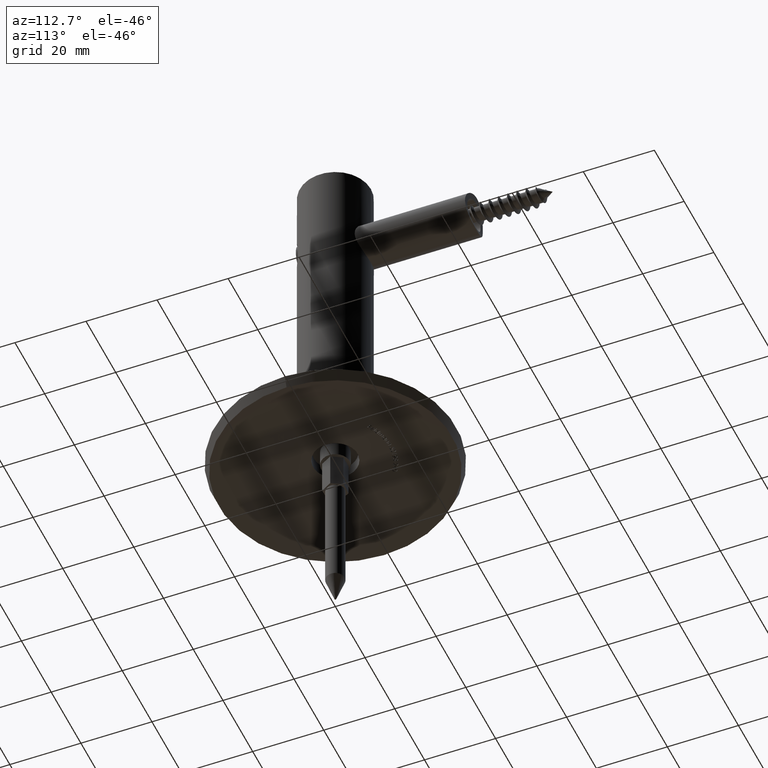
[diagram: clean part render]
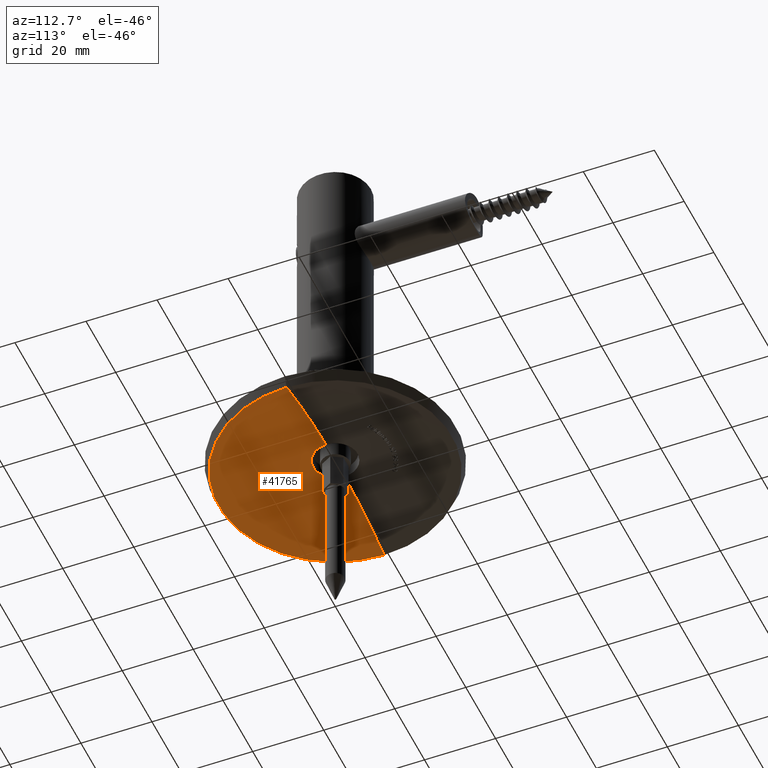
[diagram: same view with one face highlighted and labeled with its STEP entity id]
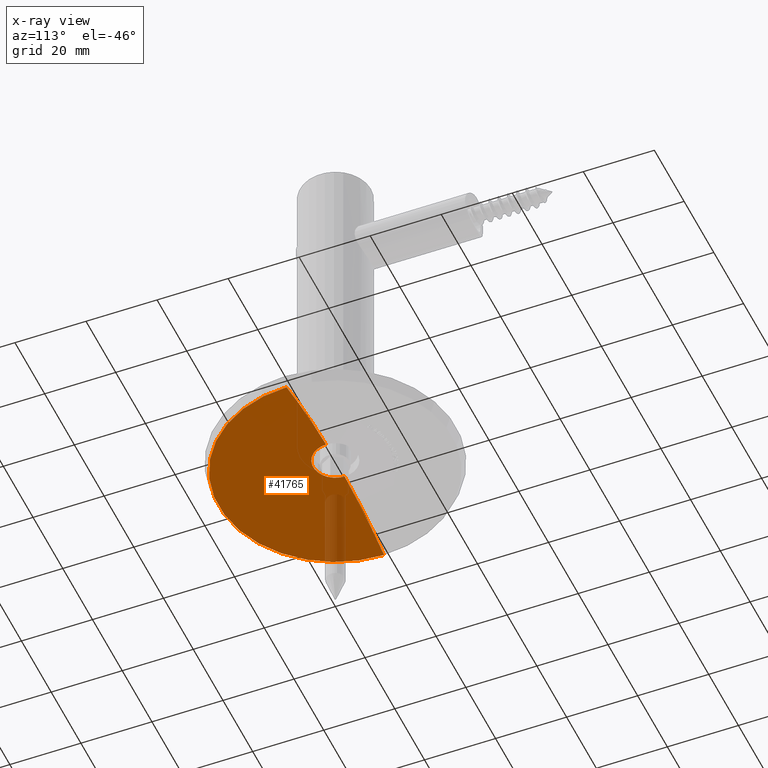
[diagram: x-ray of the same camera — body ghosted, the highlighted face saturated]
A machine part, auxiliary view. The second image highlights one B-rep face of the part: STEP entity #41765.
The next image is the same camera in x-ray: the body ghosted, the highlighted face saturated — about 7% of this face is hidden behind the body in this view.
In plain terms, the highlighted spherical surface has radius 132.202 mm.
Its self-contained STEP definition (entity closure, byte-faithful):
#1206 = SPHERICAL_SURFACE ( 'NONE', #4555, 132.2019220182881725 ) ;
#3555 = DIRECTION ( 'NONE',  ( -1.873600393855974325E-19, 1.000000000000000000, -0.000000000000000000 ) ) ;
#3759 = DIRECTION ( 'NONE',  ( 0.000000000000000000, 0.000000000000000000, 1.000000000000000000 ) ) ;
#3782 = DIRECTION ( 'NONE',  ( 1.224646799147353207E-16, 2.294498725216939218E-35, -1.000000000000000000 ) ) ;
#4099 = CIRCLE ( 'NONE', #15116, 132.2019220182881725 ) ;
#4555 = AXIS2_PLACEMENT_3D ( 'NONE', #21039, #32043, #41966 ) ;
#5153 = VERTEX_POINT ( 'NONE', #42075 ) ;
#6884 = CARTESIAN_POINT ( 'NONE',  ( 2.769568483248144150E-20, -0.1478206608159504665, 0.000000000000000000 ) ) ;
#6949 = CARTESIAN_POINT ( 'NONE',  ( 3.232237634562468506E-14, -132.2019220182881725, 0.000000000000000000 ) ) ;
#7104 = EDGE_LOOP ( 'NONE', ( #8090, #30852, #12939, #32981 ) ) ;
#8090 = ORIENTED_EDGE ( 'NONE', *, *, #11078, .F. ) ;
#8646 = CARTESIAN_POINT ( 'NONE',  ( 7.761254698396231712E-19, -4.142427981893799682, 0.000000000000000000 ) ) ;
#8714 = EDGE_CURVE ( 'NONE', #5153, #19216, #4099, .T. ) ;
#10146 = DIRECTION ( 'NONE',  ( -1.000000000000000000, 0.000000000000000000, -1.224646799147353207E-16 ) ) ;
#11078 = EDGE_CURVE ( 'NONE', #21315, #5153, #28354, .T. ) ;
#12939 = ORIENTED_EDGE ( 'NONE', *, *, #38410, .T. ) ;
#14231 = AXIS2_PLACEMENT_3D ( 'NONE', #33447, #3782, #10146 ) ;
#14288 = CARTESIAN_POINT ( 'NONE',  ( -6.249999999999849898, -0.1478206608159504665, -2.393244512369030344E-15 ) ) ;
#14995 = DIRECTION ( 'NONE',  ( -1.000000000000000000, 0.000000000000000000, 0.000000000000000000 ) ) ;
#15116 = AXIS2_PLACEMENT_3D ( 'NONE', #6949, #3759, #33567 ) ;
#17299 = CARTESIAN_POINT ( 'NONE',  ( 6.249999999999849898, -0.1478206608159504665, 0.000000000000000000 ) ) ;
#17440 = VERTEX_POINT ( 'NONE', #14288 ) ;
#18789 = FACE_OUTER_BOUND ( 'NONE', #7104, .T. ) ;
#19216 = VERTEX_POINT ( 'NONE', #17299 ) ;
#20437 = CARTESIAN_POINT ( 'NONE',  ( -32.83464896222003659, -4.142427981893796129, -4.021084775270976268E-15 ) ) ;
#21039 = CARTESIAN_POINT ( 'NONE',  ( 3.232237634562468506E-14, -132.2019220182881725, 0.000000000000000000 ) ) ;
#21315 = VERTEX_POINT ( 'NONE', #20437 ) ;
#23769 = AXIS2_PLACEMENT_3D ( 'NONE', #8646, #41867, #14995 ) ;
#26686 = EDGE_CURVE ( 'NONE', #21315, #17440, #34616, .T. ) ;
#26813 = DIRECTION ( 'NONE',  ( -1.000000000000000000, 0.000000000000000000, 0.000000000000000000 ) ) ;
#28354 = CIRCLE ( 'NONE', #23769, 32.83464896222004370 ) ;
#30845 = AXIS2_PLACEMENT_3D ( 'NONE', #6884, #3555, #26813 ) ;
#30852 = ORIENTED_EDGE ( 'NONE', *, *, #26686, .T. ) ;
#32043 = DIRECTION ( 'NONE',  ( 0.000000000000000000, 0.000000000000000000, -1.000000000000000000 ) ) ;
#32981 = ORIENTED_EDGE ( 'NONE', *, *, #8714, .F. ) ;
#33447 = CARTESIAN_POINT ( 'NONE',  ( 3.232237634562468506E-14, -132.2019220182881725, 0.000000000000000000 ) ) ;
#33567 = DIRECTION ( 'NONE',  ( 1.000000000000000000, 0.000000000000000000, 0.000000000000000000 ) ) ;
#34616 = CIRCLE ( 'NONE', #14231, 132.2019220182881725 ) ;
#38410 = EDGE_CURVE ( 'NONE', #17440, #19216, #38624, .T. ) ;
#38624 = CIRCLE ( 'NONE', #30845, 6.249999999999849898 ) ;
#41765 = ADVANCED_FACE ( 'NONE', ( #18789 ), #1206, .F. ) ;
#41867 = DIRECTION ( 'NONE',  ( -1.873600393855974325E-19, 1.000000000000000000, -0.000000000000000000 ) ) ;
#41966 = DIRECTION ( 'NONE',  ( 1.000000000000000000, 0.000000000000000000, 0.000000000000000000 ) ) ;
#42075 = CARTESIAN_POINT ( 'NONE',  ( 32.83464896222006502, -4.142427981893796129, 0.000000000000000000 ) ) ;